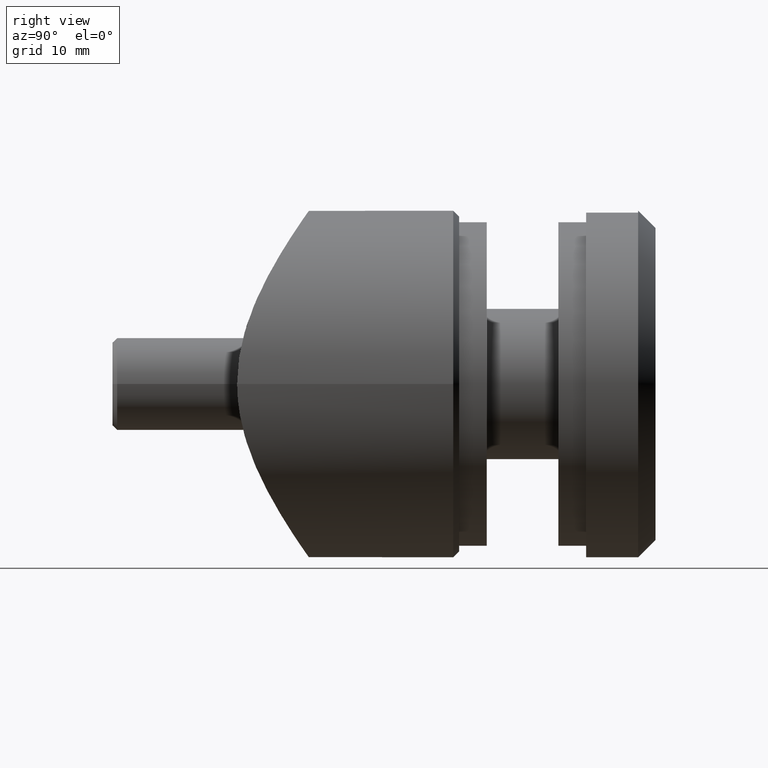
[diagram: clean part render]
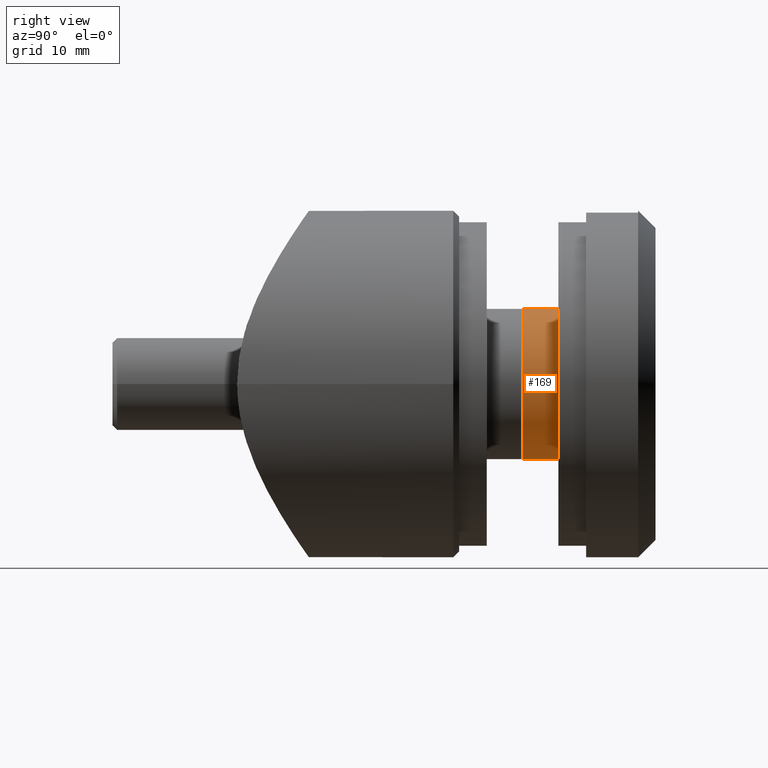
[diagram: same view with one face highlighted and labeled with its STEP entity id]
A machine part, right view. The second image highlights one B-rep face of the part: STEP entity #169.
In plain terms, the highlighted cylindrical surface (partial cylindrical patch) has radius 6.5 mm, axis along (0, 1, -0).
Its self-contained STEP definition (entity closure, byte-faithful):
#169 = ADVANCED_FACE ( 'NONE', ( #5335 ), #8447, .T. ) ;
#259 = EDGE_LOOP ( 'NONE', ( #8425, #12394, #12973, #2492 ) ) ;
#672 = VERTEX_POINT ( 'NONE', #5351 ) ;
#1790 = DIRECTION ( 'NONE',  ( -0.000000000000000000, -1.000000000000000000, -0.000000000000000000 ) ) ;
#2109 = DIRECTION ( 'NONE',  ( 0.000000000000000000, 0.000000000000000000, -1.000000000000000000 ) ) ;
#2492 = ORIENTED_EDGE ( 'NONE', *, *, #6738, .F. ) ;
#3000 = VERTEX_POINT ( 'NONE', #7463 ) ;
#3556 = DIRECTION ( 'NONE',  ( -0.000000000000000000, -1.000000000000000000, -0.000000000000000000 ) ) ;
#3841 = VECTOR ( 'NONE', #13871, 1000.000000000000000 ) ;
#3866 = CARTESIAN_POINT ( 'NONE',  ( 0.000000000000000000, 0.000000000000000000, -6.499999999999999112 ) ) ;
#4925 = DIRECTION ( 'NONE',  ( 0.000000000000000000, 0.000000000000000000, -1.000000000000000000 ) ) ;
#5112 = AXIS2_PLACEMENT_3D ( 'NONE', #9181, #3556, #4925 ) ;
#5335 = FACE_OUTER_BOUND ( 'NONE', #259, .T. ) ;
#5351 = CARTESIAN_POINT ( 'NONE',  ( 7.960204194457794491E-16, 5.500000000000000000, 6.499999999999999112 ) ) ;
#5607 = CIRCLE ( 'NONE', #11452, 6.499999999999999112 ) ;
#6225 = DIRECTION ( 'NONE',  ( -0.000000000000000000, -1.000000000000000000, -0.000000000000000000 ) ) ;
#6738 = EDGE_CURVE ( 'NONE', #3000, #10156, #11080, .T. ) ;
#7463 = CARTESIAN_POINT ( 'NONE',  ( 7.960204194457796463E-16, 2.399999999999999023, 6.500000000000000888 ) ) ;
#7592 = LINE ( 'NONE', #11137, #13484 ) ;
#8230 = CARTESIAN_POINT ( 'NONE',  ( 0.000000000000000000, 5.500000000000000000, -6.499999999999999112 ) ) ;
#8425 = ORIENTED_EDGE ( 'NONE', *, *, #8819, .F. ) ;
#8447 = CYLINDRICAL_SURFACE ( 'NONE', #5112, 6.499999999999999112 ) ;
#8708 = CARTESIAN_POINT ( 'NONE',  ( 0.000000000000000000, 5.500000000000000000, 0.000000000000000000 ) ) ;
#8819 = EDGE_CURVE ( 'NONE', #672, #3000, #7592, .T. ) ;
#9181 = CARTESIAN_POINT ( 'NONE',  ( 0.000000000000000000, 0.000000000000000000, 0.000000000000000000 ) ) ;
#9556 = DIRECTION ( 'NONE',  ( 0.000000000000000000, 0.000000000000000000, -1.000000000000000000 ) ) ;
#9646 = EDGE_CURVE ( 'NONE', #672, #11004, #5607, .T. ) ;
#10156 = VERTEX_POINT ( 'NONE', #12193 ) ;
#10782 = CARTESIAN_POINT ( 'NONE',  ( 0.000000000000000000, 2.399999999999999023, 0.000000000000000000 ) ) ;
#10981 = EDGE_CURVE ( 'NONE', #11004, #10156, #13047, .T. ) ;
#11004 = VERTEX_POINT ( 'NONE', #8230 ) ;
#11080 = CIRCLE ( 'NONE', #13574, 6.500000000000000000 ) ;
#11137 = CARTESIAN_POINT ( 'NONE',  ( 7.960204194457794491E-16, 0.000000000000000000, 6.499999999999999112 ) ) ;
#11452 = AXIS2_PLACEMENT_3D ( 'NONE', #8708, #13262, #2109 ) ;
#12193 = CARTESIAN_POINT ( 'NONE',  ( 0.000000000000000000, 2.399999999999999023, -6.500000000000000000 ) ) ;
#12394 = ORIENTED_EDGE ( 'NONE', *, *, #9646, .T. ) ;
#12973 = ORIENTED_EDGE ( 'NONE', *, *, #10981, .T. ) ;
#13047 = LINE ( 'NONE', #3866, #3841 ) ;
#13262 = DIRECTION ( 'NONE',  ( -0.000000000000000000, -1.000000000000000000, -0.000000000000000000 ) ) ;
#13484 = VECTOR ( 'NONE', #6225, 1000.000000000000000 ) ;
#13574 = AXIS2_PLACEMENT_3D ( 'NONE', #10782, #1790, #9556 ) ;
#13871 = DIRECTION ( 'NONE',  ( -0.000000000000000000, -1.000000000000000000, -0.000000000000000000 ) ) ;